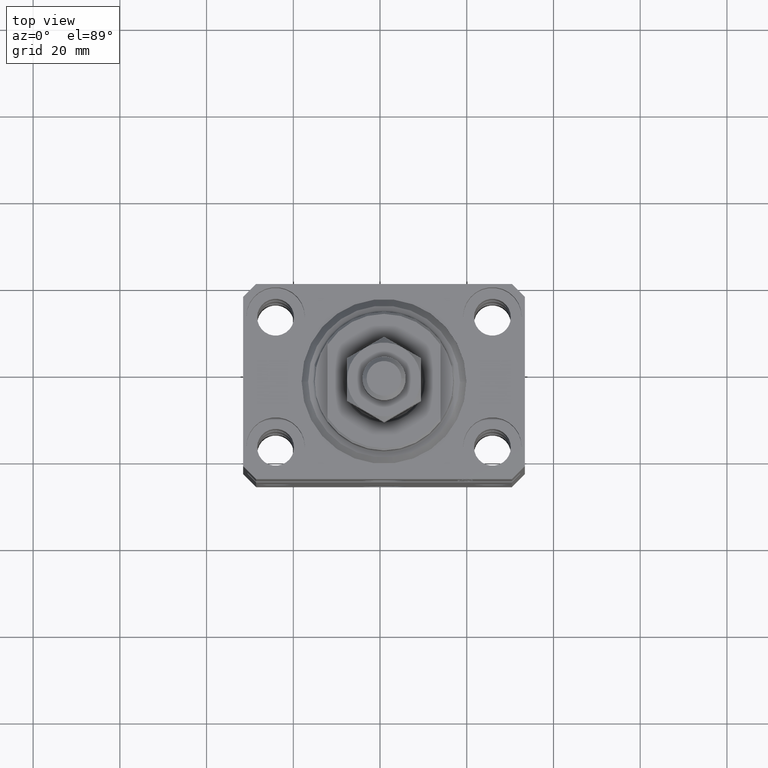
[diagram: clean part render]
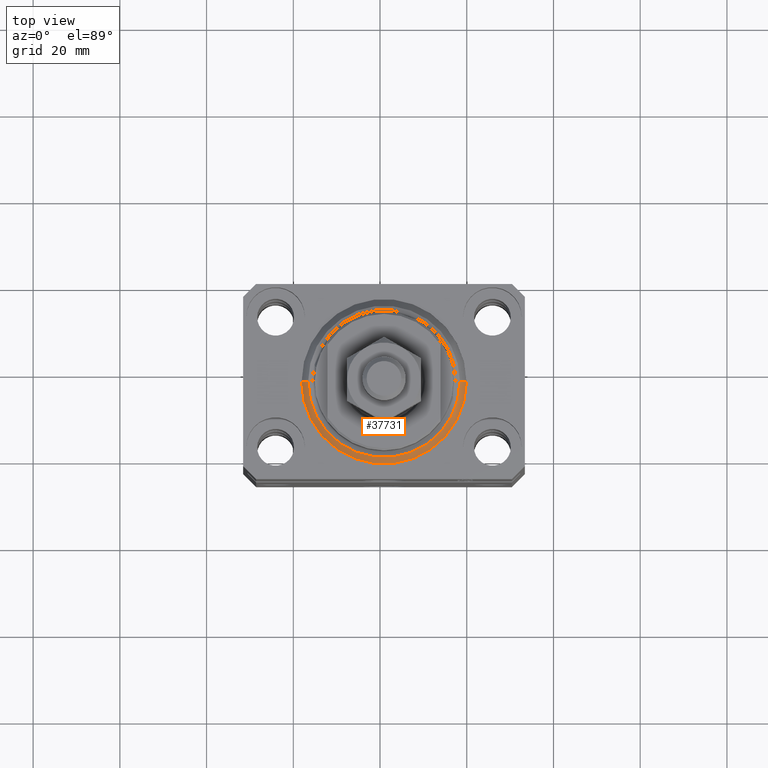
[diagram: same view with one face highlighted and labeled with its STEP entity id]
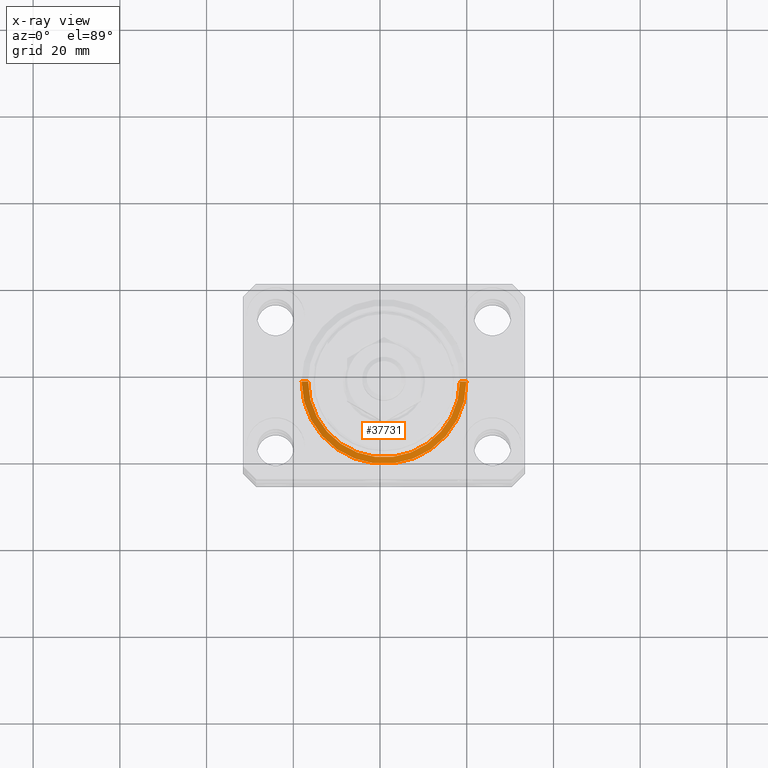
[diagram: x-ray of the same camera — body ghosted, the highlighted face saturated]
A machine part, top view. The second image highlights one B-rep face of the part: STEP entity #37731.
The next image is the same camera in x-ray: the body ghosted, the highlighted face saturated — about 0% of this face is hidden behind the body in this view.
In plain terms, the highlighted conical surface has half-angle 45 deg.
Its self-contained STEP definition (entity closure, byte-faithful):
#504 = VERTEX_POINT ( 'NONE', #717 ) ;
#717 = CARTESIAN_POINT ( 'NONE',  ( -17.49999999999999289, 2.234980408443919215E-15, 0.000000000000000000 ) ) ;
#1833 = DIRECTION ( 'NONE',  ( -0.000000000000000000, -0.000000000000000000, -1.000000000000000000 ) ) ;
#3681 = EDGE_LOOP ( 'NONE', ( #19710, #40583, #34624, #3976 ) ) ;
#3976 = ORIENTED_EDGE ( 'NONE', *, *, #43846, .F. ) ;
#4373 = CARTESIAN_POINT ( 'NONE',  ( 0.000000000000000000, 0.000000000000000000, 1.500000000000004885 ) ) ;
#7358 = CONICAL_SURFACE ( 'NONE', #11909, 19.00000000000000000, 0.7853981633974492782 ) ;
#8742 = CARTESIAN_POINT ( 'NONE',  ( 0.000000000000000000, 0.000000000000000000, 0.000000000000000000 ) ) ;
#10097 = EDGE_CURVE ( 'NONE', #40369, #504, #42459, .T. ) ;
#11909 = AXIS2_PLACEMENT_3D ( 'NONE', #33461, #14672, #22267 ) ;
#13105 = DIRECTION ( 'NONE',  ( -0.000000000000000000, -0.000000000000000000, 1.000000000000000000 ) ) ;
#14672 = DIRECTION ( 'NONE',  ( -0.000000000000000000, -0.000000000000000000, 1.000000000000000000 ) ) ;
#14901 = EDGE_CURVE ( 'NONE', #40369, #35575, #21602, .T. ) ;
#15299 = CARTESIAN_POINT ( 'NONE',  ( -19.00000000000000000, 0.000000000000000000, 1.500000000000004885 ) ) ;
#16363 = DIRECTION ( 'NONE',  ( 1.000000000000000000, 0.000000000000000000, 0.000000000000000000 ) ) ;
#18943 = FACE_OUTER_BOUND ( 'NONE', #3681, .T. ) ;
#19710 = ORIENTED_EDGE ( 'NONE', *, *, #26831, .F. ) ;
#19852 = VECTOR ( 'NONE', #43491, 1000.000000000000000 ) ;
#20239 = DIRECTION ( 'NONE',  ( 1.000000000000000000, 0.000000000000000000, 0.000000000000000000 ) ) ;
#21585 = VECTOR ( 'NONE', #46115, 1000.000000000000000 ) ;
#21602 = LINE ( 'NONE', #36120, #19852 ) ;
#22267 = DIRECTION ( 'NONE',  ( 1.000000000000000000, 0.000000000000000000, 0.000000000000000000 ) ) ;
#26831 = EDGE_CURVE ( 'NONE', #504, #41595, #31381, .T. ) ;
#28361 = CARTESIAN_POINT ( 'NONE',  ( 17.49999999999999289, 0.000000000000000000, 0.000000000000000000 ) ) ;
#31381 = LINE ( 'NONE', #31612, #21585 ) ;
#31612 = CARTESIAN_POINT ( 'NONE',  ( -19.00000000000000000, 2.326828918379970970E-15, 1.500000000000004885 ) ) ;
#33461 = CARTESIAN_POINT ( 'NONE',  ( 0.000000000000000000, 0.000000000000000000, 1.500000000000004885 ) ) ;
#34624 = ORIENTED_EDGE ( 'NONE', *, *, #14901, .T. ) ;
#35575 = VERTEX_POINT ( 'NONE', #39214 ) ;
#36120 = CARTESIAN_POINT ( 'NONE',  ( 19.00000000000000000, 0.000000000000000000, 1.500000000000004885 ) ) ;
#37731 = ADVANCED_FACE ( 'NONE', ( #18943 ), #7358, .T. ) ;
#37913 = AXIS2_PLACEMENT_3D ( 'NONE', #8742, #1833, #16363 ) ;
#39214 = CARTESIAN_POINT ( 'NONE',  ( 19.00000000000000000, 2.326828918379970970E-15, 1.500000000000004885 ) ) ;
#40118 = AXIS2_PLACEMENT_3D ( 'NONE', #4373, #13105, #20239 ) ;
#40369 = VERTEX_POINT ( 'NONE', #28361 ) ;
#40583 = ORIENTED_EDGE ( 'NONE', *, *, #10097, .F. ) ;
#41595 = VERTEX_POINT ( 'NONE', #15299 ) ;
#42459 = CIRCLE ( 'NONE', #37913, 17.49999999999999289 ) ;
#43491 = DIRECTION ( 'NONE',  ( 0.7071067811865483499, 0.000000000000000000, 0.7071067811865467956 ) ) ;
#43846 = EDGE_CURVE ( 'NONE', #41595, #35575, #46202, .T. ) ;
#46115 = DIRECTION ( 'NONE',  ( -0.7071067811865483499, 8.659560562354943952E-17, 0.7071067811865467956 ) ) ;
#46202 = CIRCLE ( 'NONE', #40118, 19.00000000000000000 ) ;